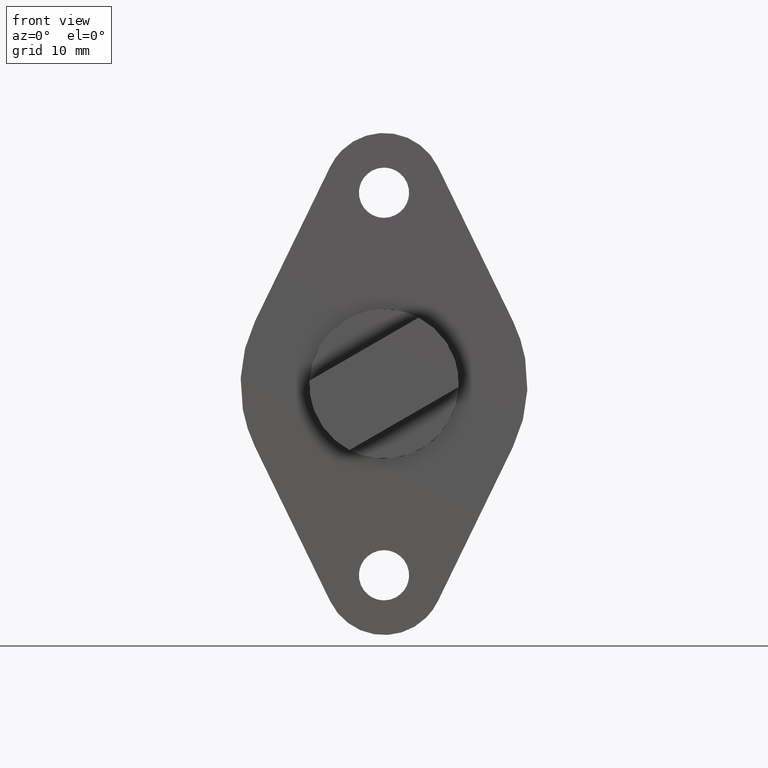
[diagram: clean part render]
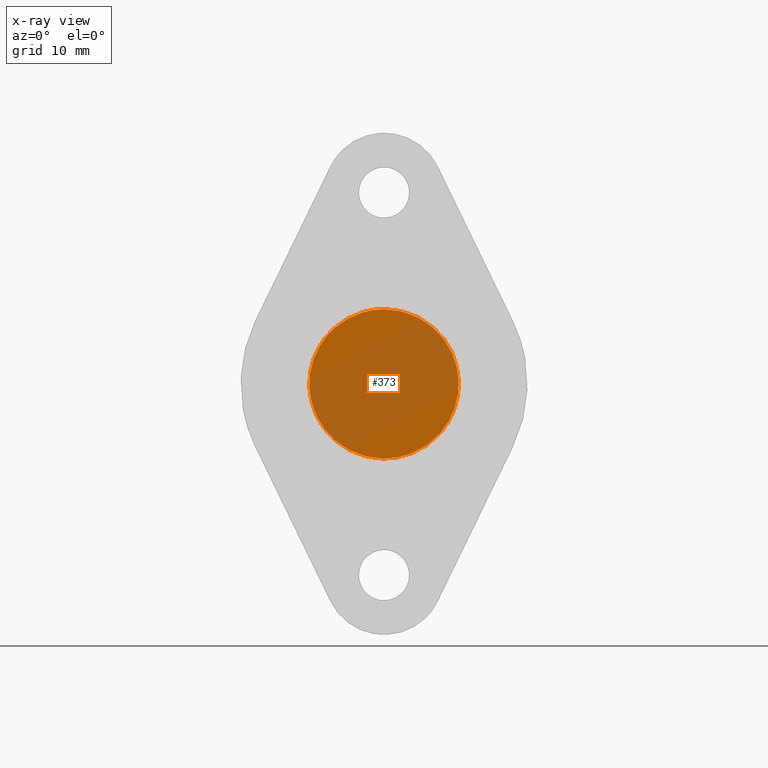
[diagram: x-ray — body ghosted, one internal face saturated and labeled with its STEP entity id]
A machine part, front view, then the same camera in x-ray: the body is ghosted and one INTERNAL B-rep face — a face not visible from any outside direction — is saturated and labeled: STEP entity #373.
In plain terms, the highlighted face is a freeform B-spline surface patch.
Its self-contained STEP definition (entity closure, byte-faithful):
#66=CARTESIAN_POINT('',(0.0,0.0,-6.249989525822799));
#67=VERTEX_POINT('',#66);
#68=CARTESIAN_POINT('',(-4.219051314900396,-2.030430E-016,4.611095596167163));
#69=VERTEX_POINT('',#68);
#70=CARTESIAN_POINT('',(0.0,0.0,-6.249989525822799));
#71=CARTESIAN_POINT('',(-6.249999999999999,0.0,-6.249989525822799));
#72=CARTESIAN_POINT('',(-6.250000000000000,0.0,0.000010474177202));
#73=CARTESIAN_POINT('',(-6.249999999999999,0.0,2.752818012450919));
#74=CARTESIAN_POINT('',(-4.219051314900396,-2.030430E-016,4.611095596167164));
#82=(BOUNDED_CURVE()B_SPLINE_CURVE(2,(#70,#71,#72,#73,#74),.UNSPECIFIED.,.F.,.U.)B_SPLINE_CURVE_WITH_KNOTS((3,2,3),(0.500000000000000,0.750000000000000,0.881695735629408),.UNSPECIFIED.)CURVE()GEOMETRIC_REPRESENTATION_ITEM()RATIONAL_B_SPLINE_CURVE((1.0,0.707106781186547,1.0,0.845708848349989,0.853973590441232))REPRESENTATION_ITEM(''));
#83=EDGE_CURVE('',#67,#69,#82,.T.);
#85=CARTESIAN_POINT('',(4.723249609189747,-1.210143E-014,-4.093082870627550));
#86=VERTEX_POINT('',#85);
#87=CARTESIAN_POINT('',(4.723249609189747,-1.210143E-014,-4.093082870627550));
#88=CARTESIAN_POINT('',(2.854108444478521,0.0,-6.249989525822800));
#89=CARTESIAN_POINT('',(0.0,0.0,-6.249989525822799));
#97=(BOUNDED_CURVE()B_SPLINE_CURVE(2,(#87,#88,#89),.UNSPECIFIED.,.F.,.U.)B_SPLINE_CURVE_WITH_KNOTS((3,3),(0.364228855239231,0.500000000000000),.UNSPECIFIED.)CURVE()GEOMETRIC_REPRESENTATION_ITEM()RATIONAL_B_SPLINE_CURVE((0.854640774798982,0.840934209556125,1.0))REPRESENTATION_ITEM(''));
#98=EDGE_CURVE('',#86,#67,#97,.T.);
#194=CARTESIAN_POINT('',(0.0,0.0,6.250010474177202));
#195=VERTEX_POINT('',#194);
#196=CARTESIAN_POINT('',(-4.219051314900396,-2.030430E-016,4.611095596167164));
#197=CARTESIAN_POINT('',(-2.427848512018767,0.0,6.250010474177203));
#198=CARTESIAN_POINT('',(0.0,0.0,6.250010474177202));
#206=(BOUNDED_CURVE()B_SPLINE_CURVE(2,(#196,#197,#198),.UNSPECIFIED.,.F.,.U.)B_SPLINE_CURVE_WITH_KNOTS((3,3),(0.881695735629409,1.0),.UNSPECIFIED.)CURVE()GEOMETRIC_REPRESENTATION_ITEM()RATIONAL_B_SPLINE_CURVE((0.853973590441232,0.861397932836559,1.0))REPRESENTATION_ITEM(''));
#207=EDGE_CURVE('',#69,#195,#206,.T.);
#270=CARTESIAN_POINT('',(0.0,0.0,6.250010474177202));
#271=CARTESIAN_POINT('',(6.249999999999999,0.0,6.250010474177202));
#272=CARTESIAN_POINT('',(6.250000000000000,0.0,0.000010474177202));
#273=CARTESIAN_POINT('',(6.250000000000001,0.0,-2.331280102098986));
#274=CARTESIAN_POINT('',(4.723249609189747,-1.210143E-014,-4.093082870627550));
#282=(BOUNDED_CURVE()B_SPLINE_CURVE(2,(#270,#271,#272,#273,#274),.UNSPECIFIED.,.F.,.U.)B_SPLINE_CURVE_WITH_KNOTS((3,2,3),(0.0,0.250000000000000,0.364228855239231),.UNSPECIFIED.)CURVE()GEOMETRIC_REPRESENTATION_ITEM()RATIONAL_B_SPLINE_CURVE((1.0,0.707106781186547,1.0,0.866172571630423,0.854640774798982))REPRESENTATION_ITEM(''));
#283=EDGE_CURVE('',#195,#86,#282,.T.);
#362=CARTESIAN_POINT('',(6.871555992672194,-1.734723E-015,-6.874364501595374));
#363=CARTESIAN_POINT('',(-6.871377066979159,-1.734723E-015,-6.874364501595374));
#364=CARTESIAN_POINT('',(6.871555992672194,-1.734723E-015,6.874385785225903));
#365=CARTESIAN_POINT('',(-6.871377066979159,-1.734723E-015,6.874385785225903));
#366=B_SPLINE_SURFACE_WITH_KNOTS('',1,1,((#362,#364),(#363,#365)),.UNSPECIFIED.,.F.,.F.,.U.,(2,2),(2,2),(0.0,13.742933059651349),(0.0,13.748750286821281),.UNSPECIFIED.);
#367=ORIENTED_EDGE('',*,*,#283,.T.);
#368=ORIENTED_EDGE('',*,*,#98,.T.);
#369=ORIENTED_EDGE('',*,*,#83,.T.);
#370=ORIENTED_EDGE('',*,*,#207,.T.);
#371=EDGE_LOOP('',(#367,#368,#369,#370));
#372=FACE_OUTER_BOUND('',#371,.T.);
#373=ADVANCED_FACE('',(#372),#366,.T.);